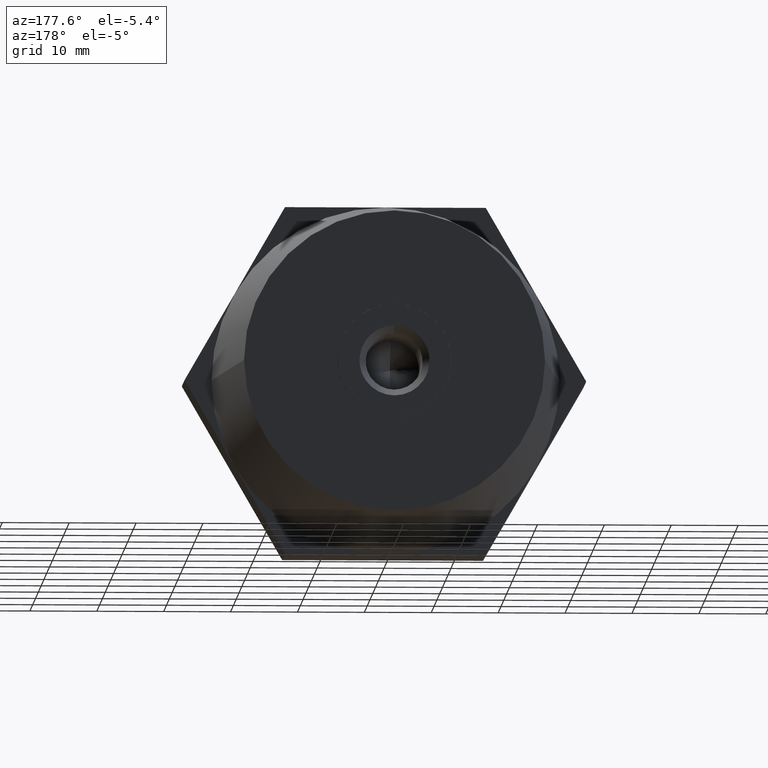
[diagram: clean part render]
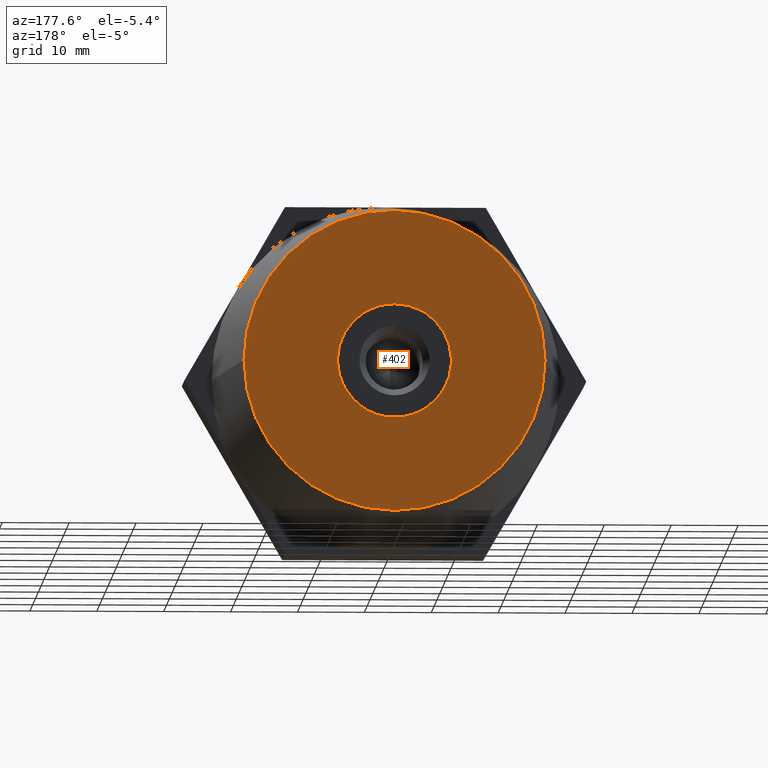
[diagram: same view with one face highlighted and labeled with its STEP entity id]
A machine part, auxiliary view. The second image highlights one B-rep face of the part: STEP entity #402.
In plain terms, the highlighted planar face has unit normal (-0, 1, 0).
Its self-contained STEP definition (entity closure, byte-faithful):
#17 = PLANE ( 'NONE',  #2181 ) ;
#20 = CARTESIAN_POINT ( 'NONE',  ( -4.333342374871279800E-031, 37.50000000000000000, 0.0000000000000000000 ) ) ;
#32 = DIRECTION ( 'NONE',  ( -1.000000000000000000, -1.387778780781445900E-016, 0.0000000000000000000 ) ) ;
#65 = CARTESIAN_POINT ( 'NONE',  ( -12.62500000000000000, 37.50000000000000000, 17.10400172474265200 ) ) ;
#70 = CARTESIAN_POINT ( 'NONE',  ( 3.892823573006375200, 37.50000000000000000, -7.567431838440679600 ) ) ;
#151 = DIRECTION ( 'NONE',  ( 0.8660254037844387100, 1.201851678989725800E-016, -0.4999999999999998900 ) ) ;
#182 = CARTESIAN_POINT ( 'NONE',  ( -1.180999742445006000E-015, 37.50000000000000000, 0.0000000000000000000 ) ) ;
#210 = DIRECTION ( 'NONE',  ( 1.387778780781445900E-016, -1.000000000000000000, -0.0000000000000000000 ) ) ;
#261 = VECTOR ( 'NONE', #2586, 1000.000000000000000 ) ;
#341 = DIRECTION ( 'NONE',  ( -1.387778780781445900E-016, 1.000000000000000000, 0.0000000000000000000 ) ) ;
#385 = DIRECTION ( 'NONE',  ( -1.000000000000000000, 0.0000000000000000000, 0.0000000000000000000 ) ) ;
#396 = CIRCLE ( 'NONE', #1541, 8.509999999999999800 ) ;
#402 = ADVANCED_FACE ( 'NONE', ( #3480, #3300 ), #17, .T. ) ;
#406 = CIRCLE ( 'NONE', #3039, 8.509999999999999800 ) ;
#459 = CARTESIAN_POINT ( 'NONE',  ( -8.500000000000000000, 37.50000000000000000, 0.4124318125458780200 ) ) ;
#512 = LINE ( 'NONE', #65, #261 ) ;
#518 = CARTESIAN_POINT ( 'NONE',  ( 5.777789833161707600E-031, 37.50000000000000000, -8.509999999999999800 ) ) ;
#550 = CARTESIAN_POINT ( 'NONE',  ( -1.180999742445006000E-015, 37.50000000000000000, 0.0000000000000000000 ) ) ;
#564 = DIRECTION ( 'NONE',  ( 0.0000000000000000000, 0.0000000000000000000, -1.000000000000000000 ) ) ;
#588 = DIRECTION ( 'NONE',  ( -1.000000000000000000, 0.0000000000000000000, 0.0000000000000000000 ) ) ;
#677 = EDGE_CURVE ( 'NONE', #723, #3801, #3154, .T. ) ;
#690 = CARTESIAN_POINT ( 'NONE',  ( 8.500000000000000000, 37.50000000000000000, 0.4124318125458665300 ) ) ;
#723 = VERTEX_POINT ( 'NONE', #3209 ) ;
#759 = ORIENTED_EDGE ( 'NONE', *, *, #824, .T. ) ;
#761 = CARTESIAN_POINT ( 'NONE',  ( 22.50000000000000000, 37.50000000000000000, 0.0000000000000000000 ) ) ;
#824 = EDGE_CURVE ( 'NONE', #3801, #1772, #3249, .T. ) ;
#846 = DIRECTION ( 'NONE',  ( -1.000000000000000000, 0.0000000000000000000, 0.0000000000000000000 ) ) ;
#865 = DIRECTION ( 'NONE',  ( 1.387778780781445900E-016, -1.000000000000000000, -0.0000000000000000000 ) ) ;
#880 = DIRECTION ( 'NONE',  ( 1.387778780781445900E-016, -1.000000000000000000, -0.0000000000000000000 ) ) ;
#908 = ORIENTED_EDGE ( 'NONE', *, *, #2175, .T. ) ;
#921 = EDGE_LOOP ( 'NONE', ( #3494, #2510 ) ) ;
#923 = DIRECTION ( 'NONE',  ( -1.000000000000000000, 0.0000000000000000000, 0.0000000000000000000 ) ) ;
#959 = EDGE_CURVE ( 'NONE', #1388, #723, #1660, .T. ) ;
#967 = AXIS2_PLACEMENT_3D ( 'NONE', #1880, #3405, #385 ) ;
#986 = EDGE_CURVE ( 'NONE', #3593, #1388, #406, .T. ) ;
#1034 = CIRCLE ( 'NONE', #2644, 8.509999999999999800 ) ;
#1042 = CARTESIAN_POINT ( 'NONE',  ( -1.180999742445006000E-015, 37.50000000000000000, 0.0000000000000000000 ) ) ;
#1096 = AXIS2_PLACEMENT_3D ( 'NONE', #1508, #1193, #923 ) ;
#1117 = ORIENTED_EDGE ( 'NONE', *, *, #3285, .T. ) ;
#1140 = EDGE_CURVE ( 'NONE', #2811, #2412, #1577, .T. ) ;
#1193 = DIRECTION ( 'NONE',  ( -1.387778780781445900E-016, 1.000000000000000000, 0.0000000000000000000 ) ) ;
#1309 = EDGE_LOOP ( 'NONE', ( #2279, #2600, #908, #1340, #2621, #3911, #3228, #2173, #3315, #1437, #759, #1507, #1117 ) ) ;
#1340 = ORIENTED_EDGE ( 'NONE', *, *, #2151, .T. ) ;
#1350 = AXIS2_PLACEMENT_3D ( 'NONE', #182, #210, #3591 ) ;
#1388 = VERTEX_POINT ( 'NONE', #459 ) ;
#1415 = DIRECTION ( 'NONE',  ( -1.000000000000000000, 0.0000000000000000000, -8.881784197001252300E-016 ) ) ;
#1437 = ORIENTED_EDGE ( 'NONE', *, *, #677, .T. ) ;
#1458 = VERTEX_POINT ( 'NONE', #2344 ) ;
#1497 = CARTESIAN_POINT ( 'NONE',  ( 4.607176426993570200, 37.50000000000000000, 7.155000025894809200 ) ) ;
#1507 = ORIENTED_EDGE ( 'NONE', *, *, #3647, .T. ) ;
#1508 = CARTESIAN_POINT ( 'NONE',  ( -4.333342374871279800E-031, 37.50000000000000000, 0.0000000000000000000 ) ) ;
#1541 = AXIS2_PLACEMENT_3D ( 'NONE', #1042, #3726, #2290 ) ;
#1577 = CIRCLE ( 'NONE', #2580, 22.50000000000000000 ) ;
#1589 = EDGE_CURVE ( 'NONE', #1458, #3593, #1712, .T. ) ;
#1617 = LINE ( 'NONE', #1977, #2447 ) ;
#1638 = CARTESIAN_POINT ( 'NONE',  ( -4.607176426993589800, 37.50000000000000000, 7.155000025894789700 ) ) ;
#1660 = LINE ( 'NONE', #3293, #2155 ) ;
#1669 = VERTEX_POINT ( 'NONE', #70 ) ;
#1677 = VERTEX_POINT ( 'NONE', #2893 ) ;
#1699 = AXIS2_PLACEMENT_3D ( 'NONE', #1932, #3142, #1415 ) ;
#1712 = LINE ( 'NONE', #3432, #3156 ) ;
#1772 = VERTEX_POINT ( 'NONE', #3675 ) ;
#1786 = EDGE_CURVE ( 'NONE', #2991, #1879, #1034, .T. ) ;
#1805 = CIRCLE ( 'NONE', #1934, 8.509999999999999800 ) ;
#1879 = VERTEX_POINT ( 'NONE', #2990 ) ;
#1880 = CARTESIAN_POINT ( 'NONE',  ( -1.180999742445006000E-015, 37.50000000000000000, 0.0000000000000000000 ) ) ;
#1897 = VERTEX_POINT ( 'NONE', #518 ) ;
#1932 = CARTESIAN_POINT ( 'NONE',  ( -1.180999742445006000E-015, 37.50000000000000000, 0.0000000000000000000 ) ) ;
#1934 = AXIS2_PLACEMENT_3D ( 'NONE', #2273, #3779, #2890 ) ;
#1977 = CARTESIAN_POINT ( 'NONE',  ( 8.500000000000000000, 37.50000000000000000, -1.095805942608280000E-014 ) ) ;
#1994 = EDGE_CURVE ( 'NONE', #3391, #1677, #512, .T. ) ;
#2060 = VERTEX_POINT ( 'NONE', #690 ) ;
#2142 = CARTESIAN_POINT ( 'NONE',  ( -12.62500000000000000, 37.50000000000000000, -17.10400172474265200 ) ) ;
#2151 = EDGE_CURVE ( 'NONE', #2060, #3391, #1805, .T. ) ;
#2155 = VECTOR ( 'NONE', #564, 1000.000000000000000 ) ;
#2173 = ORIENTED_EDGE ( 'NONE', *, *, #986, .T. ) ;
#2175 = EDGE_CURVE ( 'NONE', #1879, #2060, #1617, .T. ) ;
#2181 = AXIS2_PLACEMENT_3D ( 'NONE', #2808, #341, #32 ) ;
#2190 = DIRECTION ( 'NONE',  ( -1.387778780781445900E-016, 1.000000000000000000, 0.0000000000000000000 ) ) ;
#2273 = CARTESIAN_POINT ( 'NONE',  ( -1.180999742445006000E-015, 37.50000000000000000, 0.0000000000000000000 ) ) ;
#2279 = ORIENTED_EDGE ( 'NONE', *, *, #3942, .T. ) ;
#2289 = CIRCLE ( 'NONE', #1350, 8.509999999999999800 ) ;
#2290 = DIRECTION ( 'NONE',  ( -1.000000000000000000, 0.0000000000000000000, 0.0000000000000000000 ) ) ;
#2344 = CARTESIAN_POINT ( 'NONE',  ( -3.892823573006404900, 37.50000000000000000, 7.567431838440669800 ) ) ;
#2374 = CARTESIAN_POINT ( 'NONE',  ( -1.180999742445006000E-015, 37.50000000000000000, 0.0000000000000000000 ) ) ;
#2412 = VERTEX_POINT ( 'NONE', #761 ) ;
#2418 = DIRECTION ( 'NONE',  ( -1.000000000000000000, 0.0000000000000000000, -2.664535259100375700E-015 ) ) ;
#2447 = VECTOR ( 'NONE', #3517, 1000.000000000000000 ) ;
#2510 = ORIENTED_EDGE ( 'NONE', *, *, #1140, .T. ) ;
#2574 = VECTOR ( 'NONE', #3373, 1000.000000000000000 ) ;
#2580 = AXIS2_PLACEMENT_3D ( 'NONE', #20, #2190, #588 ) ;
#2586 = DIRECTION ( 'NONE',  ( -0.8660254037844387100, -1.201851678989725800E-016, 0.4999999999999998900 ) ) ;
#2600 = ORIENTED_EDGE ( 'NONE', *, *, #1786, .T. ) ;
#2621 = ORIENTED_EDGE ( 'NONE', *, *, #1994, .T. ) ;
#2644 = AXIS2_PLACEMENT_3D ( 'NONE', #2374, #865, #846 ) ;
#2808 = CARTESIAN_POINT ( 'NONE',  ( -22.50000000000000000, 37.50000000000000000, 0.0000000000000000000 ) ) ;
#2811 = VERTEX_POINT ( 'NONE', #3212 ) ;
#2815 = CIRCLE ( 'NONE', #1699, 8.509999999999999800 ) ;
#2890 = DIRECTION ( 'NONE',  ( -1.000000000000000000, 0.0000000000000000000, 0.0000000000000000000 ) ) ;
#2893 = CARTESIAN_POINT ( 'NONE',  ( 3.892823573006435100, 37.50000000000000000, 7.567431838440649400 ) ) ;
#2990 = CARTESIAN_POINT ( 'NONE',  ( 8.500000000000000000, 37.50000000000000000, -0.4124318125458485400 ) ) ;
#2991 = VERTEX_POINT ( 'NONE', #3893 ) ;
#3020 = VECTOR ( 'NONE', #151, 1000.000000000000000 ) ;
#3039 = AXIS2_PLACEMENT_3D ( 'NONE', #550, #880, #2418 ) ;
#3142 = DIRECTION ( 'NONE',  ( 1.387778780781445900E-016, -1.000000000000000000, -0.0000000000000000000 ) ) ;
#3154 = CIRCLE ( 'NONE', #967, 8.509999999999999800 ) ;
#3156 = VECTOR ( 'NONE', #3442, 1000.000000000000000 ) ;
#3178 = EDGE_CURVE ( 'NONE', #1677, #1458, #2815, .T. ) ;
#3209 = CARTESIAN_POINT ( 'NONE',  ( -8.500000000000000000, 37.50000000000000000, -0.4124318125458785200 ) ) ;
#3212 = CARTESIAN_POINT ( 'NONE',  ( -22.50000000000000000, 37.50000000000000000, 2.969768487932332100E-015 ) ) ;
#3228 = ORIENTED_EDGE ( 'NONE', *, *, #1589, .T. ) ;
#3238 = CIRCLE ( 'NONE', #1096, 22.50000000000000000 ) ;
#3249 = LINE ( 'NONE', #3808, #3020 ) ;
#3285 = EDGE_CURVE ( 'NONE', #1897, #1669, #2289, .T. ) ;
#3293 = CARTESIAN_POINT ( 'NONE',  ( -8.500000000000000000, 37.50000000000000000, 0.0000000000000000000 ) ) ;
#3300 = FACE_BOUND ( 'NONE', #1309, .T. ) ;
#3315 = ORIENTED_EDGE ( 'NONE', *, *, #959, .T. ) ;
#3373 = DIRECTION ( 'NONE',  ( 0.8660254037844387100, 1.201851678989727800E-016, 0.4999999999999998900 ) ) ;
#3391 = VERTEX_POINT ( 'NONE', #1497 ) ;
#3405 = DIRECTION ( 'NONE',  ( 1.387778780781445900E-016, -1.000000000000000000, -0.0000000000000000000 ) ) ;
#3432 = CARTESIAN_POINT ( 'NONE',  ( -21.12500000000000000, 37.50000000000000000, -2.381569860407205300 ) ) ;
#3442 = DIRECTION ( 'NONE',  ( -0.8660254037844387100, -1.201851678989727800E-016, -0.4999999999999998900 ) ) ;
#3472 = EDGE_CURVE ( 'NONE', #2412, #2811, #3238, .T. ) ;
#3480 = FACE_OUTER_BOUND ( 'NONE', #921, .T. ) ;
#3494 = ORIENTED_EDGE ( 'NONE', *, *, #3472, .T. ) ;
#3511 = LINE ( 'NONE', #2142, #2574 ) ;
#3517 = DIRECTION ( 'NONE',  ( 3.534857879381550100E-016, 4.905600758083819500E-032, 1.000000000000000000 ) ) ;
#3591 = DIRECTION ( 'NONE',  ( -1.000000000000000000, 0.0000000000000000000, 8.881784197001252300E-016 ) ) ;
#3593 = VERTEX_POINT ( 'NONE', #1638 ) ;
#3647 = EDGE_CURVE ( 'NONE', #1772, #1897, #396, .T. ) ;
#3675 = CARTESIAN_POINT ( 'NONE',  ( -3.892823573006380000, 37.50000000000000000, -7.567431838440679600 ) ) ;
#3726 = DIRECTION ( 'NONE',  ( 1.387778780781445900E-016, -1.000000000000000000, -0.0000000000000000000 ) ) ;
#3779 = DIRECTION ( 'NONE',  ( 1.387778780781445900E-016, -1.000000000000000000, -0.0000000000000000000 ) ) ;
#3801 = VERTEX_POINT ( 'NONE', #3858 ) ;
#3808 = CARTESIAN_POINT ( 'NONE',  ( -21.12500000000000000, 37.50000000000000000, 2.381569860407209700 ) ) ;
#3858 = CARTESIAN_POINT ( 'NONE',  ( -4.607176426993620000, 37.50000000000000000, -7.155000025894770100 ) ) ;
#3893 = CARTESIAN_POINT ( 'NONE',  ( 4.607176426993610200, 37.50000000000000000, -7.155000025894770100 ) ) ;
#3911 = ORIENTED_EDGE ( 'NONE', *, *, #3178, .T. ) ;
#3942 = EDGE_CURVE ( 'NONE', #1669, #2991, #3511, .T. ) ;